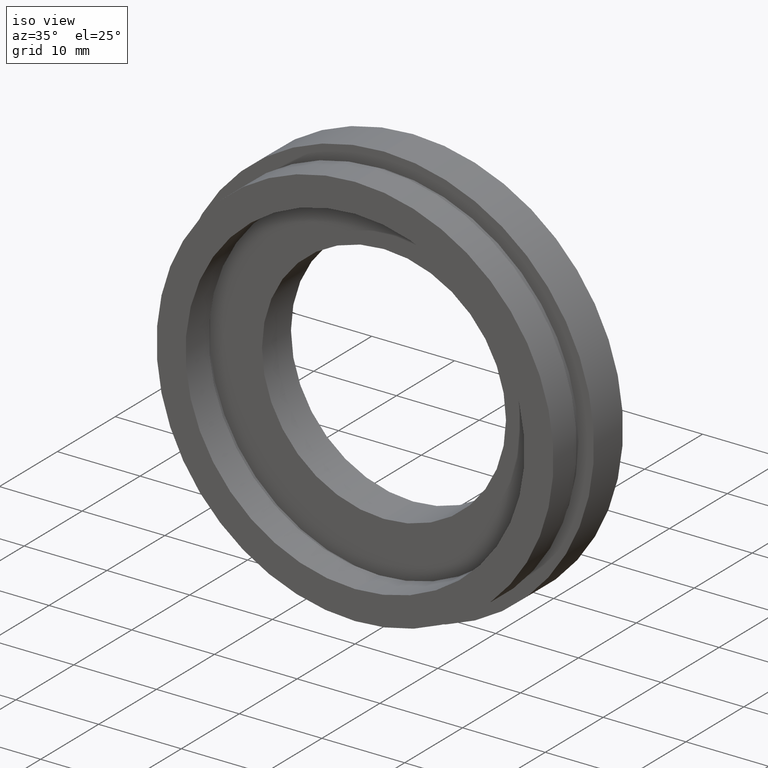
[diagram: clean part render]
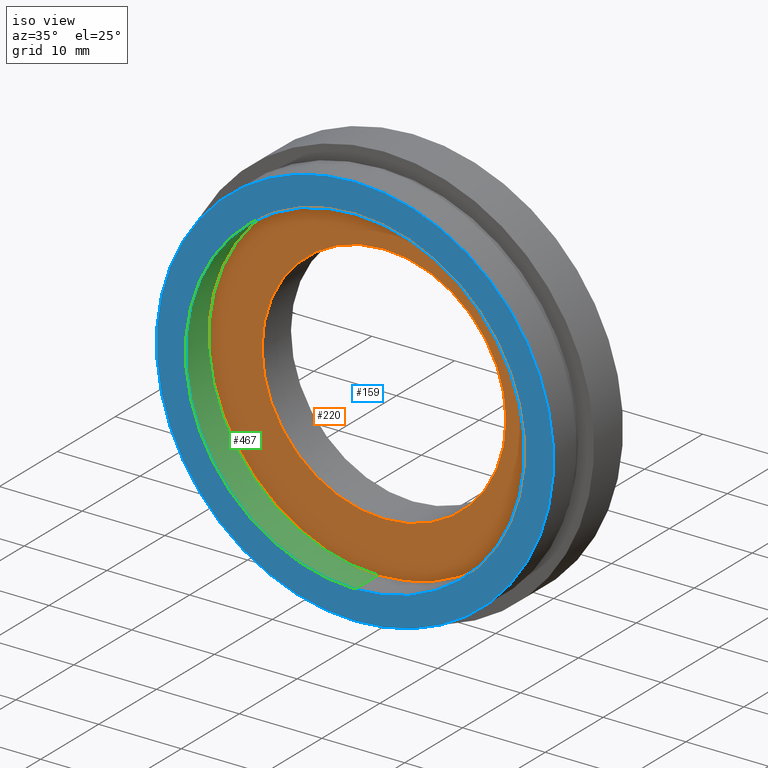
[diagram: same view with three faces highlighted in distinct colors, each labeled with its STEP entity id]
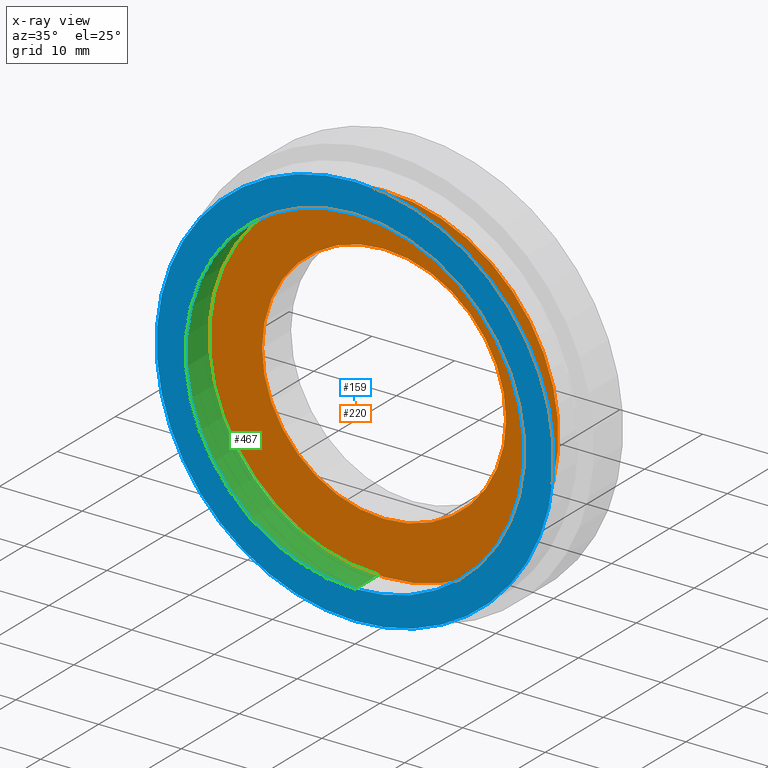
[diagram: x-ray of the same camera — body ghosted, the three highlighted faces saturated]
A machine part, iso view with three faces highlighted in distinct colors.
The next image is the same camera in x-ray (body ghosted, the three faces saturated) — at least one of them is partly hidden behind the body in this view.
Their STEP definitions:

[orange] entity #220 — the highlighted planar face has unit normal (-0, 1, 0).
#7 = ORIENTED_EDGE ( 'NONE', *, *, #17, .T. ) ;
#11 = CARTESIAN_POINT ( 'NONE',  ( 0.0000000000000000000, 4.999999999999999100, 0.0000000000000000000 ) ) ;
#17 = EDGE_CURVE ( 'NONE', #443, #312, #134, .T. ) ;
#21 = DIRECTION ( 'NONE',  ( 0.0000000000000000000, 0.0000000000000000000, 1.000000000000000000 ) ) ;
#35 = CARTESIAN_POINT ( 'NONE',  ( 0.0000000000000000000, 4.999999999999999100, 0.0000000000000000000 ) ) ;
#59 = EDGE_LOOP ( 'NONE', ( #7, #409 ) ) ;
#60 = AXIS2_PLACEMENT_3D ( 'NONE', #11, #518, #21 ) ;
#100 = CARTESIAN_POINT ( 'NONE',  ( 0.0000000000000000000, 4.999999999999999100, 21.10000000000000100 ) ) ;
#104 = ORIENTED_EDGE ( 'NONE', *, *, #354, .F. ) ;
#129 = CARTESIAN_POINT ( 'NONE',  ( 1.806354028742345800E-015, 4.999999999999999100, -14.75000000000000000 ) ) ;
#133 = CARTESIAN_POINT ( 'NONE',  ( 0.0000000000000000000, 4.999999999999999100, 0.0000000000000000000 ) ) ;
#134 = CIRCLE ( 'NONE', #343, 14.75000000000000000 ) ;
#156 = CARTESIAN_POINT ( 'NONE',  ( 21.10000000000000100, 4.999999999999999100, 0.0000000000000000000 ) ) ;
#171 = VERTEX_POINT ( 'NONE', #610 ) ;
#217 = EDGE_LOOP ( 'NONE', ( #104, #249 ) ) ;
#220 = ADVANCED_FACE ( 'NONE', ( #497, #503 ), #364, .F. ) ;
#249 = ORIENTED_EDGE ( 'NONE', *, *, #397, .F. ) ;
#253 = CIRCLE ( 'NONE', #420, 21.10000000000000100 ) ;
#267 = DIRECTION ( 'NONE',  ( -0.0000000000000000000, 1.000000000000000000, 0.0000000000000000000 ) ) ;
#286 = CIRCLE ( 'NONE', #489, 14.75000000000000000 ) ;
#298 = CIRCLE ( 'NONE', #60, 21.10000000000000100 ) ;
#308 = CARTESIAN_POINT ( 'NONE',  ( 0.0000000000000000000, 4.999999999999999100, 14.75000000000000000 ) ) ;
#312 = VERTEX_POINT ( 'NONE', #129 ) ;
#343 = AXIS2_PLACEMENT_3D ( 'NONE', #133, #558, #511 ) ;
#354 = EDGE_CURVE ( 'NONE', #577, #171, #298, .T. ) ;
#361 = DIRECTION ( 'NONE',  ( 0.0000000000000000000, 0.0000000000000000000, 1.000000000000000000 ) ) ;
#364 = PLANE ( 'NONE',  #623 ) ;
#391 = DIRECTION ( 'NONE',  ( -0.0000000000000000000, 1.000000000000000000, -0.0000000000000000000 ) ) ;
#397 = EDGE_CURVE ( 'NONE', #171, #577, #253, .T. ) ;
#398 = DIRECTION ( 'NONE',  ( -0.0000000000000000000, 1.000000000000000000, -0.0000000000000000000 ) ) ;
#409 = ORIENTED_EDGE ( 'NONE', *, *, #428, .T. ) ;
#420 = AXIS2_PLACEMENT_3D ( 'NONE', #534, #391, #361 ) ;
#428 = EDGE_CURVE ( 'NONE', #312, #443, #286, .T. ) ;
#443 = VERTEX_POINT ( 'NONE', #308 ) ;
#459 = DIRECTION ( 'NONE',  ( 0.0000000000000000000, 0.0000000000000000000, 1.000000000000000000 ) ) ;
#489 = AXIS2_PLACEMENT_3D ( 'NONE', #35, #398, #609 ) ;
#497 = FACE_OUTER_BOUND ( 'NONE', #217, .T. ) ;
#503 = FACE_BOUND ( 'NONE', #59, .T. ) ;
#511 = DIRECTION ( 'NONE',  ( 0.0000000000000000000, 0.0000000000000000000, 1.000000000000000000 ) ) ;
#518 = DIRECTION ( 'NONE',  ( -0.0000000000000000000, 1.000000000000000000, -0.0000000000000000000 ) ) ;
#534 = CARTESIAN_POINT ( 'NONE',  ( 0.0000000000000000000, 4.999999999999999100, 0.0000000000000000000 ) ) ;
#558 = DIRECTION ( 'NONE',  ( -0.0000000000000000000, 1.000000000000000000, -0.0000000000000000000 ) ) ;
#577 = VERTEX_POINT ( 'NONE', #100 ) ;
#609 = DIRECTION ( 'NONE',  ( 0.0000000000000000000, 0.0000000000000000000, 1.000000000000000000 ) ) ;
#610 = CARTESIAN_POINT ( 'NONE',  ( 2.584004746200915400E-015, 4.999999999999999100, -21.10000000000000100 ) ) ;
#623 = AXIS2_PLACEMENT_3D ( 'NONE', #156, #267, #459 ) ;

[blue] entity #159 — the highlighted planar face has unit normal (-0, 1, 0).
#20 = DIRECTION ( 'NONE',  ( -0.0000000000000000000, 1.000000000000000000, -0.0000000000000000000 ) ) ;
#26 = AXIS2_PLACEMENT_3D ( 'NONE', #120, #473, #173 ) ;
#74 = DIRECTION ( 'NONE',  ( 0.0000000000000000000, 0.0000000000000000000, 1.000000000000000000 ) ) ;
#90 = CARTESIAN_POINT ( 'NONE',  ( 0.0000000000000000000, 0.0000000000000000000, 20.50000000000000000 ) ) ;
#92 = AXIS2_PLACEMENT_3D ( 'NONE', #403, #20, #74 ) ;
#93 = VERTEX_POINT ( 'NONE', #180 ) ;
#94 = AXIS2_PLACEMENT_3D ( 'NONE', #592, #167, #205 ) ;
#96 = CARTESIAN_POINT ( 'NONE',  ( 2.939152317953647900E-015, 0.0000000000000000000, -24.00000000000000000 ) ) ;
#120 = CARTESIAN_POINT ( 'NONE',  ( 0.0000000000000000000, 0.0000000000000000000, 0.0000000000000000000 ) ) ;
#137 = AXIS2_PLACEMENT_3D ( 'NONE', #158, #513, #466 ) ;
#158 = CARTESIAN_POINT ( 'NONE',  ( 0.0000000000000000000, 0.0000000000000000000, 0.0000000000000000000 ) ) ;
#159 = ADVANCED_FACE ( 'NONE', ( #556, #579 ), #548, .F. ) ;
#167 = DIRECTION ( 'NONE',  ( -0.0000000000000000000, 1.000000000000000000, 0.0000000000000000000 ) ) ;
#173 = DIRECTION ( 'NONE',  ( 0.0000000000000000000, 0.0000000000000000000, 1.000000000000000000 ) ) ;
#180 = CARTESIAN_POINT ( 'NONE',  ( 0.0000000000000000000, 0.0000000000000000000, 24.00000000000000000 ) ) ;
#193 = ORIENTED_EDGE ( 'NONE', *, *, #542, .T. ) ;
#203 = ORIENTED_EDGE ( 'NONE', *, *, #247, .F. ) ;
#205 = DIRECTION ( 'NONE',  ( 0.0000000000000000000, 0.0000000000000000000, 1.000000000000000000 ) ) ;
#244 = DIRECTION ( 'NONE',  ( -0.0000000000000000000, 1.000000000000000000, -0.0000000000000000000 ) ) ;
#247 = EDGE_CURVE ( 'NONE', #93, #399, #554, .T. ) ;
#266 = AXIS2_PLACEMENT_3D ( 'NONE', #432, #244, #332 ) ;
#285 = EDGE_CURVE ( 'NONE', #294, #309, #396, .T. ) ;
#294 = VERTEX_POINT ( 'NONE', #442 ) ;
#305 = EDGE_LOOP ( 'NONE', ( #193, #346 ) ) ;
#309 = VERTEX_POINT ( 'NONE', #90 ) ;
#332 = DIRECTION ( 'NONE',  ( 0.0000000000000000000, 0.0000000000000000000, 1.000000000000000000 ) ) ;
#342 = EDGE_CURVE ( 'NONE', #399, #93, #505, .T. ) ;
#346 = ORIENTED_EDGE ( 'NONE', *, *, #285, .T. ) ;
#382 = EDGE_LOOP ( 'NONE', ( #203, #384 ) ) ;
#384 = ORIENTED_EDGE ( 'NONE', *, *, #342, .F. ) ;
#396 = CIRCLE ( 'NONE', #92, 20.50000000000000000 ) ;
#399 = VERTEX_POINT ( 'NONE', #96 ) ;
#403 = CARTESIAN_POINT ( 'NONE',  ( 0.0000000000000000000, 0.0000000000000000000, 0.0000000000000000000 ) ) ;
#432 = CARTESIAN_POINT ( 'NONE',  ( 0.0000000000000000000, 0.0000000000000000000, 0.0000000000000000000 ) ) ;
#439 = CIRCLE ( 'NONE', #266, 20.50000000000000000 ) ;
#442 = CARTESIAN_POINT ( 'NONE',  ( 2.510525938252074500E-015, 0.0000000000000000000, -20.50000000000000000 ) ) ;
#466 = DIRECTION ( 'NONE',  ( 0.0000000000000000000, 0.0000000000000000000, 1.000000000000000000 ) ) ;
#473 = DIRECTION ( 'NONE',  ( -0.0000000000000000000, 1.000000000000000000, -0.0000000000000000000 ) ) ;
#505 = CIRCLE ( 'NONE', #137, 24.00000000000000000 ) ;
#513 = DIRECTION ( 'NONE',  ( -0.0000000000000000000, 1.000000000000000000, -0.0000000000000000000 ) ) ;
#542 = EDGE_CURVE ( 'NONE', #309, #294, #439, .T. ) ;
#548 = PLANE ( 'NONE',  #94 ) ;
#554 = CIRCLE ( 'NONE', #26, 24.00000000000000000 ) ;
#556 = FACE_OUTER_BOUND ( 'NONE', #382, .T. ) ;
#579 = FACE_BOUND ( 'NONE', #305, .T. ) ;
#592 = CARTESIAN_POINT ( 'NONE',  ( 24.00000000000000000, -3.272868570721301400E-016, 0.0000000000000000000 ) ) ;

[green] entity #467 — the highlighted cylindrical surface (partial cylindrical patch) has radius 20.5 mm, axis along (-0, 1, -0).
#2 = FACE_OUTER_BOUND ( 'NONE', #329, .T. ) ;
#15 = VECTOR ( 'NONE', #16, 1000.000000000000000 ) ;
#16 = DIRECTION ( 'NONE',  ( -0.0000000000000000000, 1.000000000000000000, -0.0000000000000000000 ) ) ;
#20 = DIRECTION ( 'NONE',  ( -0.0000000000000000000, 1.000000000000000000, -0.0000000000000000000 ) ) ;
#71 = ORIENTED_EDGE ( 'NONE', *, *, #383, .F. ) ;
#74 = DIRECTION ( 'NONE',  ( 0.0000000000000000000, 0.0000000000000000000, 1.000000000000000000 ) ) ;
#90 = CARTESIAN_POINT ( 'NONE',  ( 0.0000000000000000000, 0.0000000000000000000, 20.50000000000000000 ) ) ;
#92 = AXIS2_PLACEMENT_3D ( 'NONE', #403, #20, #74 ) ;
#116 = EDGE_CURVE ( 'NONE', #294, #604, #562, .T. ) ;
#140 = CARTESIAN_POINT ( 'NONE',  ( 0.0000000000000000000, 13.74468085106383300, 0.0000000000000000000 ) ) ;
#176 = DIRECTION ( 'NONE',  ( 0.0000000000000000000, 0.0000000000000000000, 1.000000000000000000 ) ) ;
#181 = DIRECTION ( 'NONE',  ( 0.0000000000000000000, 0.0000000000000000000, 1.000000000000000000 ) ) ;
#234 = CIRCLE ( 'NONE', #315, 20.50000000000000000 ) ;
#240 = ORIENTED_EDGE ( 'NONE', *, *, #504, .T. ) ;
#274 = VERTEX_POINT ( 'NONE', #280 ) ;
#280 = CARTESIAN_POINT ( 'NONE',  ( 0.0000000000000000000, 4.000000000000000000, 20.50000000000000000 ) ) ;
#285 = EDGE_CURVE ( 'NONE', #294, #309, #396, .T. ) ;
#289 = DIRECTION ( 'NONE',  ( -0.0000000000000000000, 1.000000000000000000, -0.0000000000000000000 ) ) ;
#294 = VERTEX_POINT ( 'NONE', #442 ) ;
#297 = ORIENTED_EDGE ( 'NONE', *, *, #285, .F. ) ;
#309 = VERTEX_POINT ( 'NONE', #90 ) ;
#315 = AXIS2_PLACEMENT_3D ( 'NONE', #528, #429, #181 ) ;
#329 = EDGE_LOOP ( 'NONE', ( #297, #390, #240, #71 ) ) ;
#359 = CARTESIAN_POINT ( 'NONE',  ( 2.510525938252074500E-015, 4.000000000000000000, -20.50000000000000000 ) ) ;
#360 = AXIS2_PLACEMENT_3D ( 'NONE', #140, #407, #176 ) ;
#383 = EDGE_CURVE ( 'NONE', #309, #274, #493, .T. ) ;
#390 = ORIENTED_EDGE ( 'NONE', *, *, #116, .T. ) ;
#396 = CIRCLE ( 'NONE', #92, 20.50000000000000000 ) ;
#403 = CARTESIAN_POINT ( 'NONE',  ( 0.0000000000000000000, 0.0000000000000000000, 0.0000000000000000000 ) ) ;
#407 = DIRECTION ( 'NONE',  ( -0.0000000000000000000, 1.000000000000000000, -0.0000000000000000000 ) ) ;
#426 = CARTESIAN_POINT ( 'NONE',  ( 0.0000000000000000000, 13.74468085106383300, 20.50000000000000000 ) ) ;
#429 = DIRECTION ( 'NONE',  ( -0.0000000000000000000, 1.000000000000000000, -0.0000000000000000000 ) ) ;
#442 = CARTESIAN_POINT ( 'NONE',  ( 2.510525938252074500E-015, 0.0000000000000000000, -20.50000000000000000 ) ) ;
#467 = ADVANCED_FACE ( 'NONE', ( #2 ), #568, .F. ) ;
#493 = LINE ( 'NONE', #426, #15 ) ;
#504 = EDGE_CURVE ( 'NONE', #604, #274, #234, .T. ) ;
#528 = CARTESIAN_POINT ( 'NONE',  ( 0.0000000000000000000, 4.000000000000000000, 0.0000000000000000000 ) ) ;
#562 = LINE ( 'NONE', #593, #575 ) ;
#568 = CYLINDRICAL_SURFACE ( 'NONE', #360, 20.50000000000000000 ) ;
#575 = VECTOR ( 'NONE', #289, 1000.000000000000000 ) ;
#593 = CARTESIAN_POINT ( 'NONE',  ( 2.510525938252074500E-015, 13.74468085106383300, -20.50000000000000000 ) ) ;
#604 = VERTEX_POINT ( 'NONE', #359 ) ;